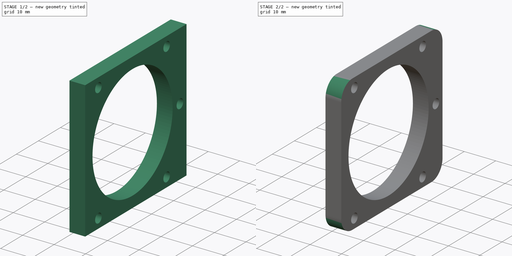
[diagram: build sequence overview — one tinted view per stage of 2, left to right]
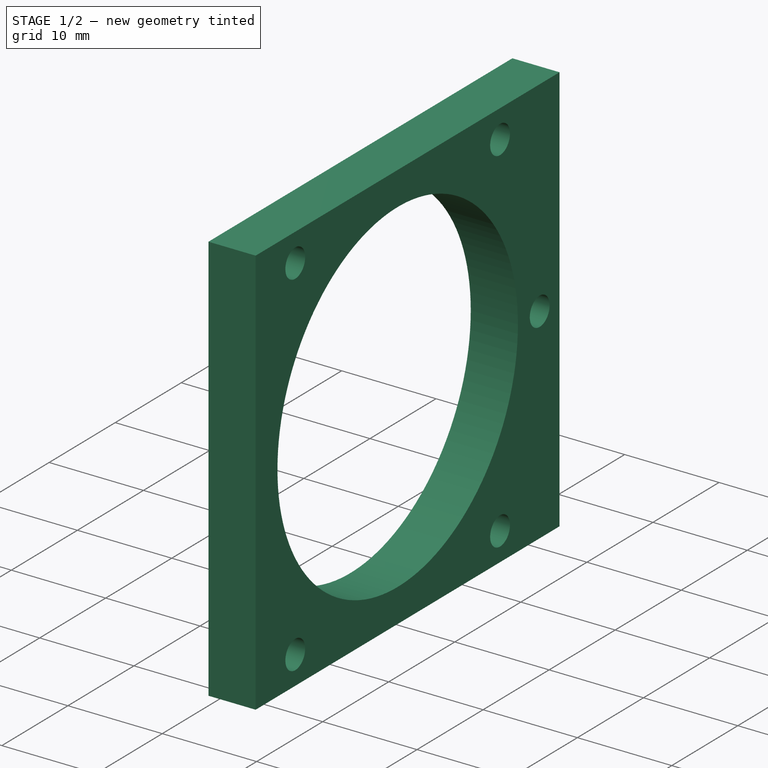
[diagram: stage 1 of 2 — iso view after this stage's code; geometry added in this stage tinted green]
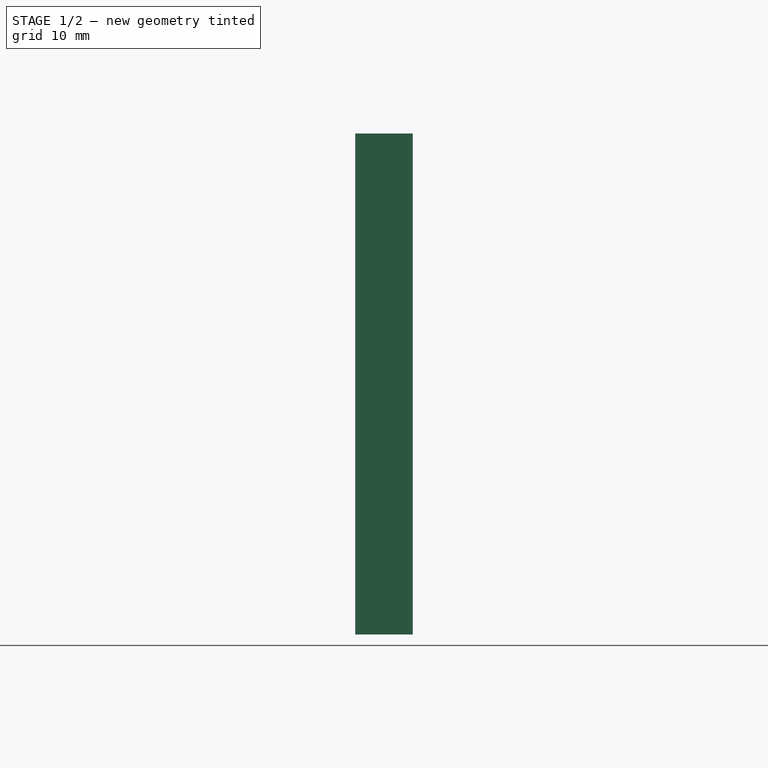
[diagram: stage 1 of 2 — front view after this stage's code; geometry added in this stage tinted green]
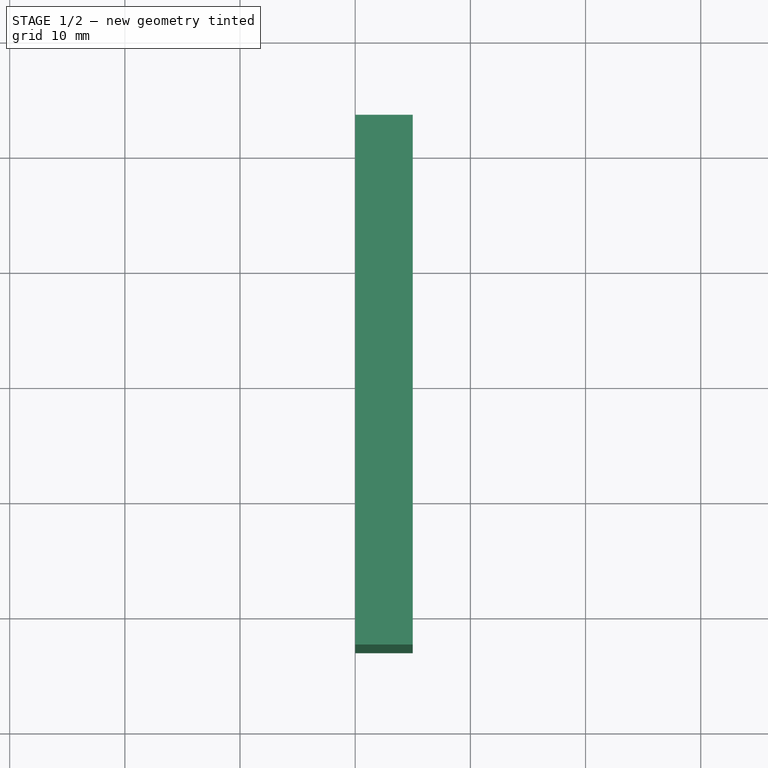
[diagram: stage 1 of 2 — top view after this stage's code; geometry added in this stage tinted green]
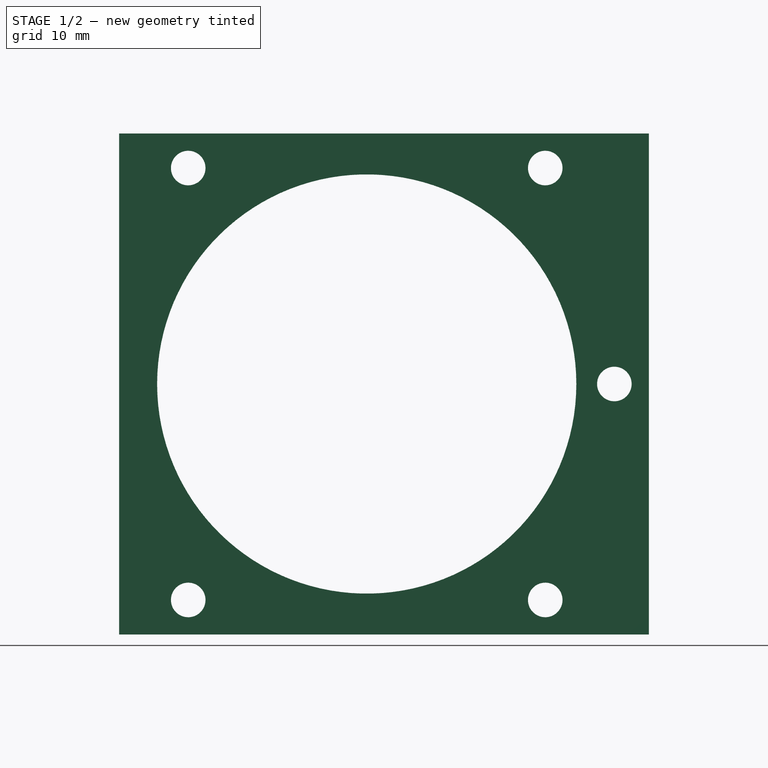
[diagram: stage 1 of 2 — right view after this stage's code; geometry added in this stage tinted green]
FCSTD DOCUMENT  (FreeCAD 0.19R24276 (Git))
Label: Lens_holder_Part_1_V2
License: All rights reserved
LicenseURL: http://en.wikipedia.org/wiki/All_rights_reserved
objects: Sketcher::SketchObject×2, PartDesign::Fillet×2, PartDesign::Pad×1, PartDesign::Pocket×1, PartDesign::Body×1
note: 11 computed .brp shape members not serialized (recipe doc carries the construction recipe); baked Part::Feature solids carry a one-line shape summary decoded from their .brp

FEATURE [Sketcher::SketchObject] Sketch  label="Sketch_31,5x37"
  FullyConstrained = false
  MapMode = 5
  Placement = pos=(0,0,0) rot=(0.57735,0.57735,0.57735;2.0944rad)
  Support = -> [YZ_Plane]
  sketch-geometry (49):
    g0: LineSegment StartX=0 StartY=0 StartZ=0 EndX=37 EndY=0 EndZ=0
    g1: LineSegment StartX=37 StartY=0 StartZ=0 EndX=37 EndY=31.5 EndZ=0
    g2: LineSegment StartX=37 StartY=31.5 StartZ=0 EndX=0 EndY=31.5 EndZ=0
    g3: LineSegment StartX=0 StartY=31.5 StartZ=0 EndX=0 EndY=0 EndZ=0
    g4: Circle CenterX=18.5 CenterY=15.75 CenterZ=0 NormalX=0 NormalY=0 NormalZ=1 AngleXU=0 Radius=3.83506
    g5: LineSegment StartX=18.5 StartY=15.75 StartZ=0 EndX=37 EndY=15.75 EndZ=0
    g6: LineSegment StartX=31 StartY=28.25 StartZ=0 EndX=6 EndY=28.25 EndZ=0
    g7: LineSegment StartX=6 StartY=28.25 StartZ=0 EndX=6 EndY=3.25 EndZ=0
    g8: LineSegment StartX=6 StartY=3.25 StartZ=0 EndX=31 EndY=3.25 EndZ=0
    g9: LineSegment StartX=31 StartY=3.25 StartZ=0 EndX=31 EndY=28.25 EndZ=0
    g10: Circle CenterX=18.5 CenterY=15.75 CenterZ=0 NormalX=0 NormalY=0 NormalZ=1 AngleXU=0 Radius=17.6777
    g11: LineSegment StartX=18.5 StartY=15.75 StartZ=0 EndX=18.5 EndY=31.5 EndZ=0
    g12: LineSegment StartX=37 StartY=31.5 StartZ=0 EndX=31 EndY=31.5 EndZ=0
    g13: LineSegment StartX=31 StartY=31.5 StartZ=0 EndX=31 EndY=37.5 EndZ=0
    g14: LineSegment StartX=31 StartY=37.5 StartZ=0 EndX=37 EndY=37.5 EndZ=0
    g15: LineSegment StartX=37 StartY=37.5 StartZ=0 EndX=37 EndY=31.5 EndZ=0
    g16: LineSegment StartX=31 StartY=31.5 StartZ=0 EndX=0 EndY=31.5 EndZ=0
    g17: LineSegment StartX=6 StartY=37.5 StartZ=0 EndX=0 EndY=37.5 EndZ=0
    g18: LineSegment StartX=6 StartY=31.5 StartZ=0 EndX=6 EndY=37.5 EndZ=0
    g19: LineSegment StartX=6 StartY=31.5 StartZ=0 EndX=31 EndY=31.5 EndZ=0
    g20: LineSegment StartX=0 StartY=37.5 StartZ=0 EndX=0 EndY=-6 EndZ=0
    g21: LineSegment StartX=37 StartY=0 StartZ=0 EndX=31 EndY=0 EndZ=0
    g22: LineSegment StartX=31 StartY=0 StartZ=0 EndX=31 EndY=-6 EndZ=0
    g23: LineSegment StartX=31 StartY=-6 StartZ=0 EndX=37 EndY=-6 EndZ=0
    g24: LineSegment StartX=37 StartY=-6 StartZ=0 EndX=37 EndY=0 EndZ=0
    g25: LineSegment StartX=6 StartY=-6 StartZ=0 EndX=0 EndY=-6 EndZ=0
    g26: LineSegment StartX=6 StartY=0 StartZ=0 EndX=6 EndY=-6 EndZ=0
    g27: LineSegment StartX=37 StartY=37.5 StartZ=0 EndX=37 EndY=-6 EndZ=0
    g28: LineSegment StartX=0 StartY=37.5 StartZ=0 EndX=0 EndY=-6 EndZ=0
    g29: LineSegment StartX=6 StartY=0 StartZ=0 EndX=31 EndY=0 EndZ=0
    g30: LineSegment StartX=6 StartY=31.5 StartZ=0 EndX=31 EndY=31.5 EndZ=0
    g31: LineSegment StartX=37 StartY=18.75 StartZ=0 EndX=43 EndY=18.75 EndZ=0
    g32: LineSegment StartX=43 StartY=18.75 StartZ=0 EndX=43 EndY=12.75 EndZ=0
    g33: LineSegment StartX=43 StartY=12.75 StartZ=0 EndX=37 EndY=12.75 EndZ=0
    g34: LineSegment StartX=37 StartY=12.75 StartZ=0 EndX=37 EndY=18.75 EndZ=0
    g35: LineSegment StartX=37 StartY=37.5 StartZ=0 EndX=37 EndY=18.75 EndZ=0
    g36: LineSegment StartX=37 StartY=12.75 StartZ=0 EndX=37 EndY=-6 EndZ=0
    g37: Circle CenterX=18.5 CenterY=15.75 CenterZ=0 NormalX=0 NormalY=0 NormalZ=1 AngleXU=0 Radius=18.2
    g38: LineSegment StartX=0 StartY=37.5 StartZ=0 EndX=-3 EndY=37.5 EndZ=0
    g39: LineSegment StartX=-3 StartY=37.5 StartZ=0 EndX=-3 EndY=-6 EndZ=0
    g40: LineSegment StartX=-3 StartY=-6 StartZ=0 EndX=0 EndY=-6 EndZ=0
    g41: LineSegment StartX=0 StartY=-6 StartZ=0 EndX=0 EndY=37.5 EndZ=0
    g42: LineSegment StartX=-3 StartY=37.5 StartZ=0 EndX=-3 EndY=-6 EndZ=0
    g43: LineSegment StartX=37 StartY=37.5 StartZ=0 EndX=43 EndY=37.5 EndZ=0
    g44: LineSegment StartX=43 StartY=37.5 StartZ=0 EndX=43 EndY=-6 EndZ=0
    g45: LineSegment StartX=43 StartY=-6 StartZ=0 EndX=37 EndY=-6 EndZ=0
    g46: LineSegment StartX=37 StartY=-6 StartZ=0 EndX=37 EndY=37.5 EndZ=0
    g47: LineSegment StartX=43 StartY=37.5 StartZ=0 EndX=-3 EndY=37.5 EndZ=0
    g48: LineSegment StartX=43 StartY=-6 StartZ=0 EndX=-3 EndY=-6 EndZ=0
  constraints (126):
    c: Coincident(g0,g1)
    c: Coincident(g1,g2)
    c: Coincident(g2,g3)
    c: Coincident(g3,g0)
    c: Horizontal(g0)
    c: Horizontal(g2)
    c: Vertical(g1)
    c: Vertical(g3)
    c: Coincident(g0,g-1)
    c: DistanceY(g3,g3) = 31.5
    c: DistanceX(g4,g0) = 18.5
    c: Coincident(g5,g4)
    c: Horizontal(g5)
    c: Symmetric(g1,g0,g5)
    c: Coincident(g6,g7)
    c: Coincident(g7,g8)
    c: Coincident(g8,g9)
    c: Coincident(g9,g6)
    c: Equal(g6,g7)
    c: Equal(g6,g8)
    c: Equal(g6,g9)
    c: PointOnObject(g6,g10)
    c: PointOnObject(g7,g10)
    c: PointOnObject(g8,g10)
    c: PointOnObject(g9,g10)
    c: Coincident(g10,g4)
    c: Horizontal(g6)
    c: Coincident(g11,g4)
    c: Vertical(g11)
    c: Symmetric(g2,g1,g11)
    c: DistanceX(g8,g8) = 25
    c: Coincident(g12,g13)
    c: Coincident(g13,g14)
    c: Coincident(g14,g15)
    c: Coincident(g15,g12)
    c: Horizontal(g12)
    c: Horizontal(g14)
    c: Vertical(g13)
    c: Vertical(g15)
    c: Coincident(g12,g1)
    c: DistanceY(g15,g15) = 6
    c: DistanceX(g14,g14) = 6
    c: Coincident(g16,g13)
    c: Coincident(g16,g3)
    c: Coincident(g18,g17)
    c: Horizontal(g17)
    c: Vertical(g18)
    c: Horizontal(g18,g13)
    c: Coincident(g19,g13)
    c: Coincident(g20,g17)
    c: Vertical(g3,g17)
    c: Horizontal(g17,g13)
    c: Equal(g17,g14)
    c: Coincident(g19,g18)
    c: Coincident(g21,g22)
    c: Coincident(g22,g23)
    c: Coincident(g23,g24)
    c: Coincident(g24,g21)
    c: Horizontal(g21)
    c: Horizontal(g23)
    c: Vertical(g22)
    c: Vertical(g24)
    c: Coincident(g26,g25)
    c: Horizontal(g25)
    c: Vertical(g26)
    c: Equal(g25,g23)
    c: Vertical(g22,g13)
    c: Equal(g22,g13)
    c: Coincident(g21,g0)
    c: Horizontal(g25,g22)
    c: Vertical(g25,g0)
    c: Coincident(g20,g25)
    c: Horizontal(g26,g22)
    c: Coincident(g27,g14)
    c: Coincident(g27,g23)
    c: Coincident(g28,g17)
    c: Coincident(g28,g25)
    c: Coincident(g29,g26)
    c: Coincident(g29,g22)
    c: Coincident(g30,g18)
    c: Coincident(g30,g13)
    c: Coincident(g31,g32)
    c: Coincident(g32,g33)
    c: Coincident(g33,g34)
    c: Coincident(g34,g31)
    c: Horizontal(g31)
    c: Horizontal(g33)
    c: Vertical(g32)
    c: Vertical(g34)
    c: DistanceY(g32,g32) = 6
    c: DistanceX(g33,g33) = 6
    c: Symmetric(g31,g33,g5)
    c: Coincident(g35,g14)
    c: Coincident(g36,g33)
    c: Coincident(g35,g31)
    c: Coincident(g36,g23)
    c: Coincident(g37,g4)
    c: Diameter(g37) = 36.4
    c: Coincident(g38,g39)
    c: Coincident(g39,g40)
    c: Coincident(g40,g41)
    c: Coincident(g41,g38)
    c: Horizontal(g38)
    c: Horizontal(g40)
    c: Vertical(g39)
    c: Vertical(g41)
    c: Coincident(g38,g28)
    c: Horizontal(g40,g25)
    c: DistanceX(g40,g40) = 3
    c: Coincident(g42,g39)
    c: Coincident(g43,g44)
    c: Coincident(g44,g45)
    c: Coincident(g45,g46)
    c: Coincident(g46,g43)
    c: Horizontal(g43)
    c: Horizontal(g45)
    c: Vertical(g44)
    c: Vertical(g46)
    c: Coincident(g43,g35)
    c: Horizontal(g45,g36)
    c: Vertical(g44,g32)
    c: Coincident(g47,g44)
    c: Coincident(g47,g42)
    c: Coincident(g38,g42)
    c: Coincident(g48,g44)
    c: Coincident(g48,g42)
FEATURE [PartDesign::Pad] Pad  label="Pad_h5"
  Direction = (1,1,1)
  Length = 5
  Length2 = 100
  Placement = pos=(0,0,0) rot=(0.57735,0.57735,0.57735;2.0944rad)
  Profile = -> Sketch
  Type = 0
FEATURE [Sketcher::SketchObject] Sketch006
  FullyConstrained = false
  MapMode = 5
  Placement = pos=(5,-1.1e-15,1.1e-15) rot=(0.57735,0.57735,0.57735;2.0944rad)
  sketch-geometry (14):
    g0: Circle CenterX=3 CenterY=34.5 CenterZ=0 NormalX=0 NormalY=0 NormalZ=1 AngleXU=0 Radius=1.5
    g1: Circle CenterX=34 CenterY=34.5 CenterZ=0 NormalX=0 NormalY=0 NormalZ=1 AngleXU=0 Radius=1.5
    g2: Circle CenterX=40 CenterY=15.75 CenterZ=0 NormalX=0 NormalY=0 NormalZ=1 AngleXU=0 Radius=1.5
    g3: Circle CenterX=34 CenterY=-3 CenterZ=0 NormalX=0 NormalY=0 NormalZ=1 AngleXU=0 Radius=1.5
    g4: Circle CenterX=3 CenterY=-3 CenterZ=0 NormalX=0 NormalY=0 NormalZ=1 AngleXU=0 Radius=1.5
    g5: LineSegment StartX=0 StartY=-6 StartZ=0 EndX=37 EndY=-6 EndZ=0
    g6: LineSegment StartX=37 StartY=-6 StartZ=0 EndX=37 EndY=37.5 EndZ=0
    g7: LineSegment StartX=37 StartY=37.5 StartZ=0 EndX=0 EndY=37.5 EndZ=0
    g8: LineSegment StartX=0 StartY=37.5 StartZ=0 EndX=0 EndY=-6 EndZ=0
    g9: LineSegment StartX=43 StartY=12.75 StartZ=0 EndX=37 EndY=12.75 EndZ=0
    g10: LineSegment StartX=37 StartY=12.75 StartZ=0 EndX=37 EndY=18.75 EndZ=0
    g11: LineSegment StartX=37 StartY=18.75 StartZ=0 EndX=43 EndY=18.75 EndZ=0
    g12: LineSegment StartX=43 StartY=18.75 StartZ=0 EndX=43 EndY=12.75 EndZ=0
    g13: LineSegment StartX=13.4118 StartY=15.75 StartZ=0 EndX=37 EndY=15.75 EndZ=0
  constraints (37):
    c: Diameter(g4) = 3
    c: Equal(g4, g0-g3) x4
    c: Coincident(g5,g6)
    c: Coincident(g6,g7)
    c: Coincident(g7,g8)
    c: Coincident(g8,g5)
    c: Horizontal(g5)
    c: Horizontal(g7)
    c: Vertical(g6)
    c: Vertical(g8)
    c: PointOnObject(g5,g-2)
    c: DistanceY(g5,g-1) = 6
    c: DistanceY(g5,g7) = 43.5
    c: DistanceX(g5,g5) = 37
    c: DistanceX(g5,g4) = 3
    c: DistanceX(g3,g5) = 3
    c: Vertical(g4,g0)
    c: Vertical(g1,g3)
    c: DistanceY(g5,g4) = 3
    c: DistanceY(g0,g7) = 3
    c: Horizontal(g0,g1)
    c: Horizontal(g4,g3)
    c: Coincident(g9,g10)
    c: Coincident(g10,g11)
    c: Coincident(g11,g12)
    c: Coincident(g12,g9)
    c: Horizontal(g9)
    c: Horizontal(g11)
    c: Vertical(g10)
    c: Vertical(g12)
    c: DistanceY(g12,g12) = 6
    c: DistanceX(g11,g11) = 6
    c: Horizontal(g13)
    c: Symmetric(g5,g6,g13)
    c: Symmetric(g9,g10,g13)
    c: Horizontal(g13,g2)
    c: DistanceX(g9,g2) = 3
FEATURE [PartDesign::Pocket] Pocket
  BaseFeature = -> Pad
  Length = 5
  Length2 = 100
  Placement = pos=(0,0,0) rot=(0.57735,0.57735,0.57735;2.0944rad)
  Profile = -> Sketch006
  Type = 1
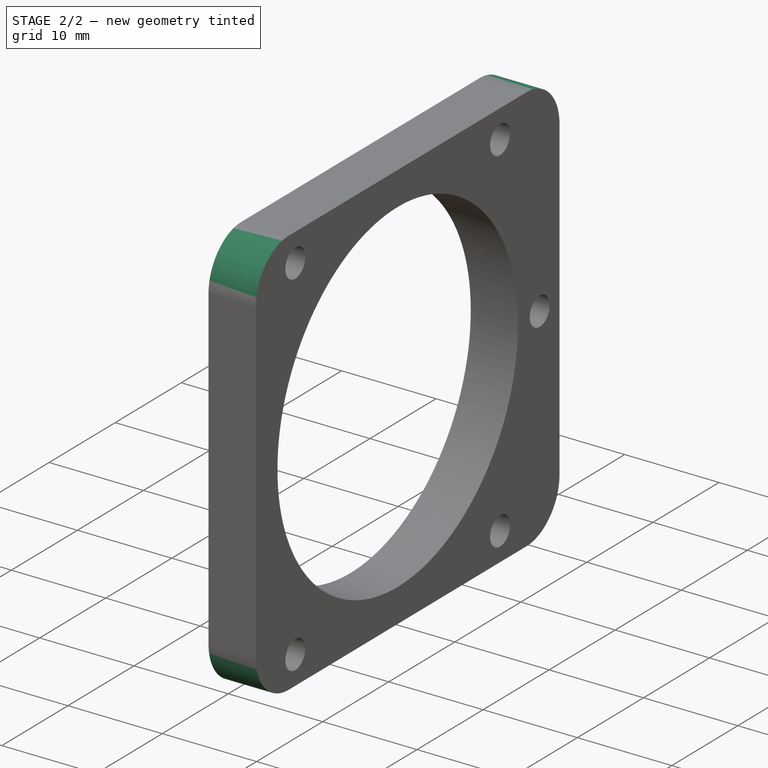
[diagram: stage 2 of 2 — iso view after this stage's code; geometry added in this stage tinted green]
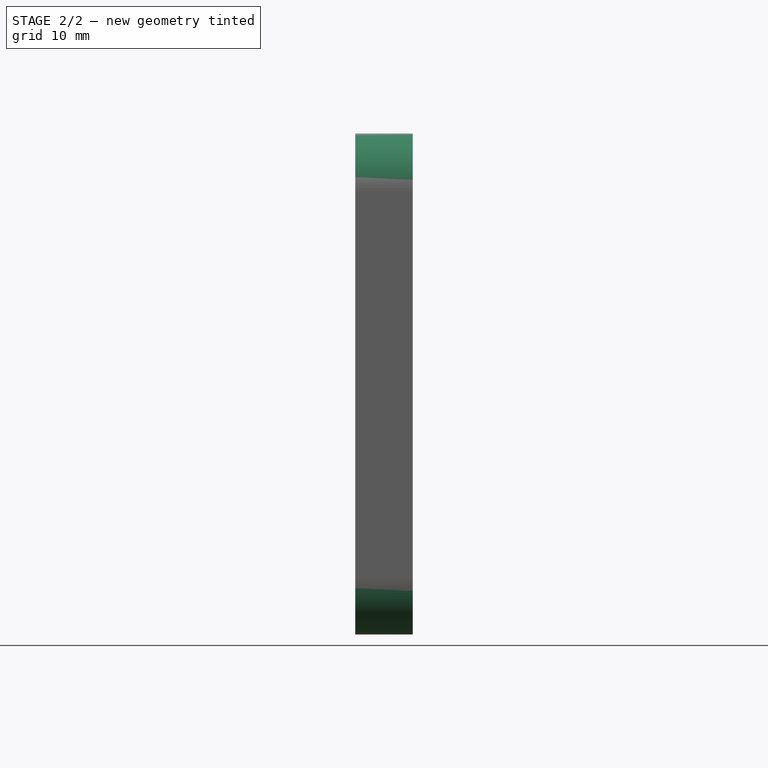
[diagram: stage 2 of 2 — front view after this stage's code; geometry added in this stage tinted green]
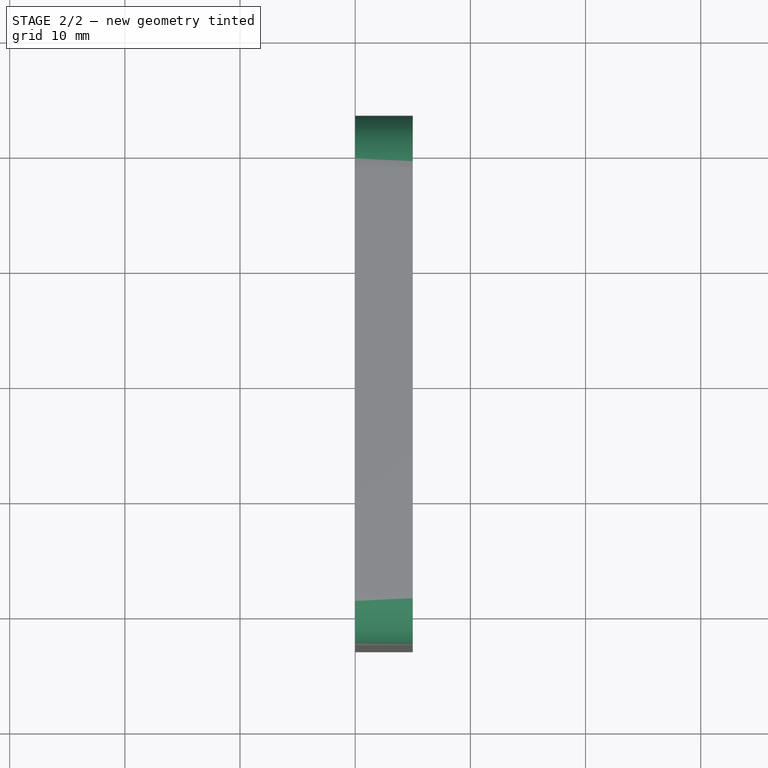
[diagram: stage 2 of 2 — top view after this stage's code; geometry added in this stage tinted green]
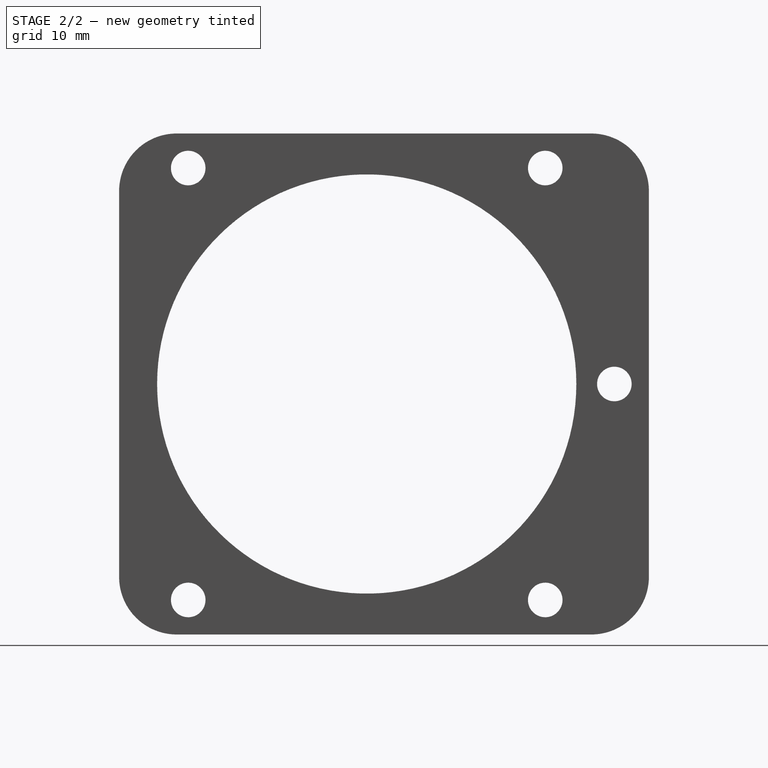
[diagram: stage 2 of 2 — right view after this stage's code; geometry added in this stage tinted green]
FEATURE [PartDesign::Fillet] Fillet
  Base = -> Pocket [Edge5,Edge8]
  BaseFeature = -> Pocket
  Placement = pos=(0,0,0) rot=(0.57735,0.57735,0.57735;2.0944rad)
  Radius = 5
  SupportTransform = false
FEATURE [PartDesign::Fillet] Fillet001
  Base = -> Fillet [Edge3,Edge18]
  BaseFeature = -> Fillet
  Placement = pos=(0,0,0) rot=(0.57735,0.57735,0.57735;2.0944rad)
  Radius = 5
  SupportTransform = false
FEATURE [PartDesign::Body] Body
  Group = -> [Sketch,Pad,Sketch006,Pocket,Fillet,Fillet001]
  Origin = -> Origin
  Tip = -> Fillet001
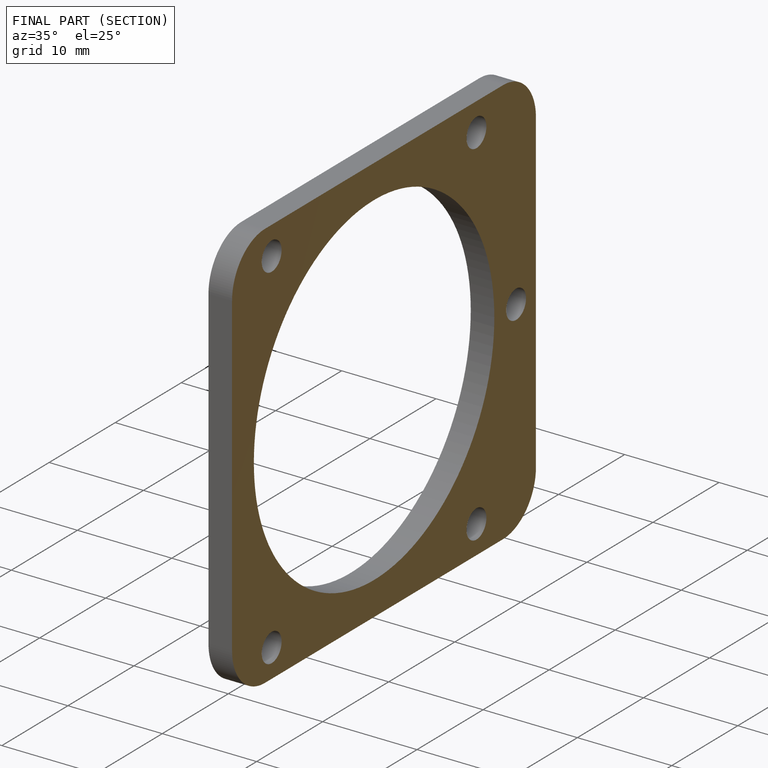
[diagram: finished part — half-section view (interior)]
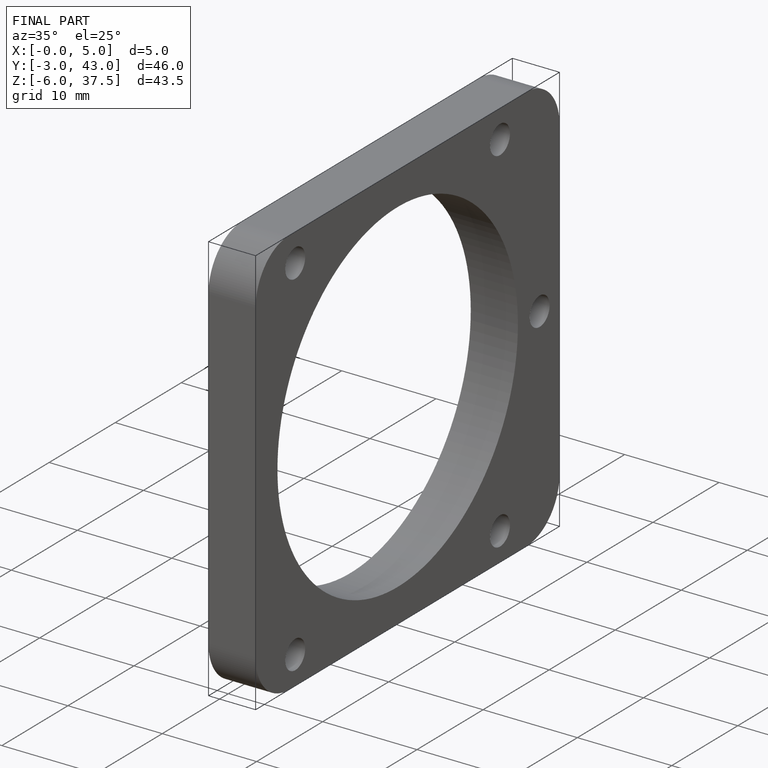
[diagram: finished part — iso view with bounding-box wireframe]
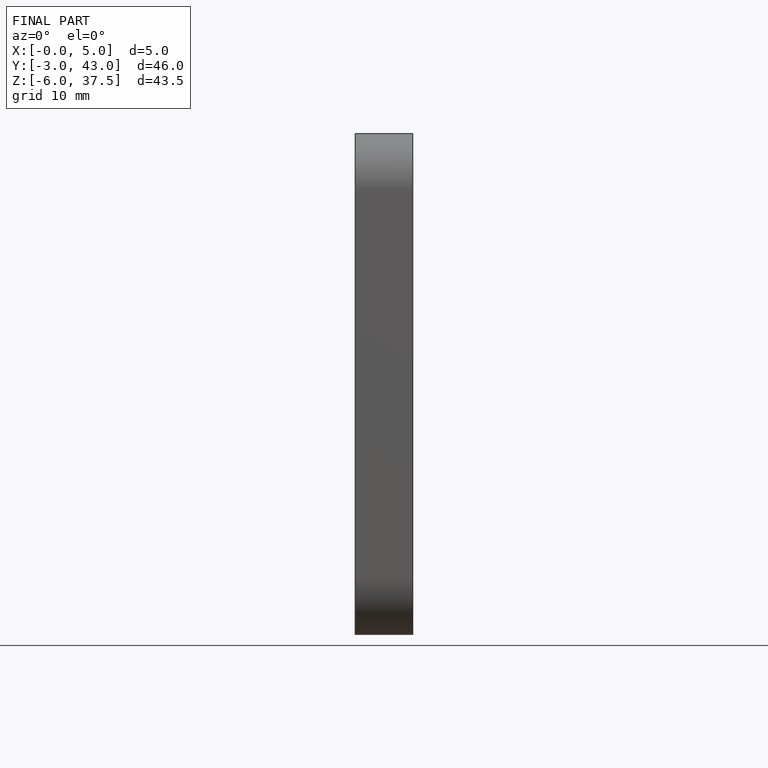
[diagram: finished part — front view with bounding-box wireframe]
